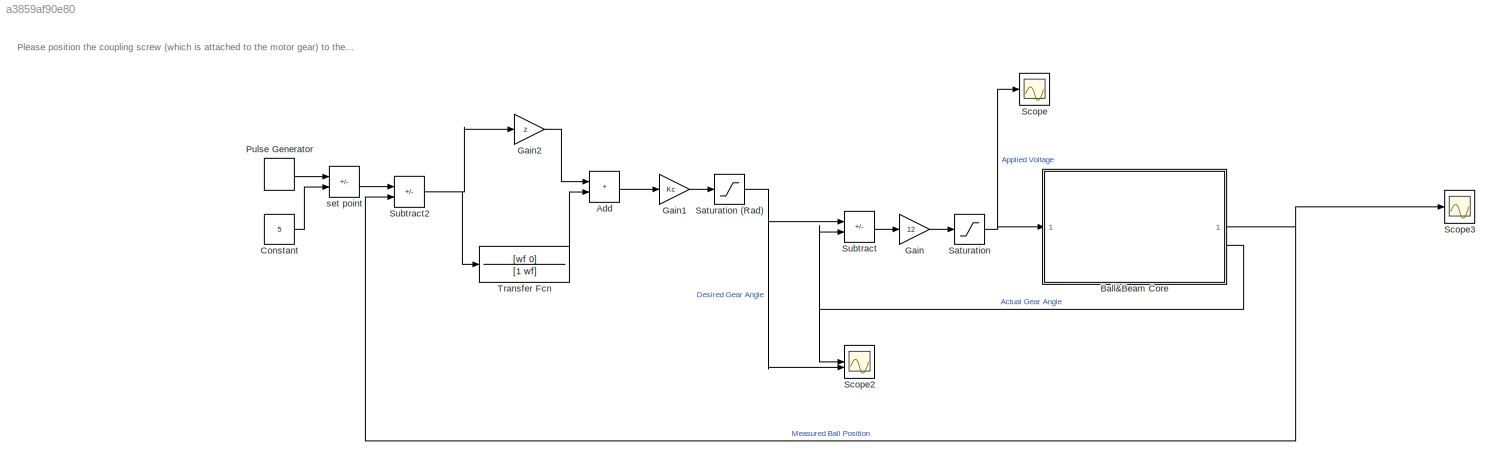
MODEL slx_a3859af90e80
KIND model
CONFIG AbsTol = auto
CONFIG EnableMultiTasking = on
CONFIG FixedStep = 0.002
CONFIG MaxStep = auto
CONFIG MinStep = auto
CONFIG RelTol = 1e-3
CONFIG SampleTimeConstraint = Unconstrained
CONFIG SolverName = FixedStepAuto
CONFIG StartTime = 0.0
CONFIG StopTime = inf
BLOCK [Sum] Add
  IconShape = rectangular
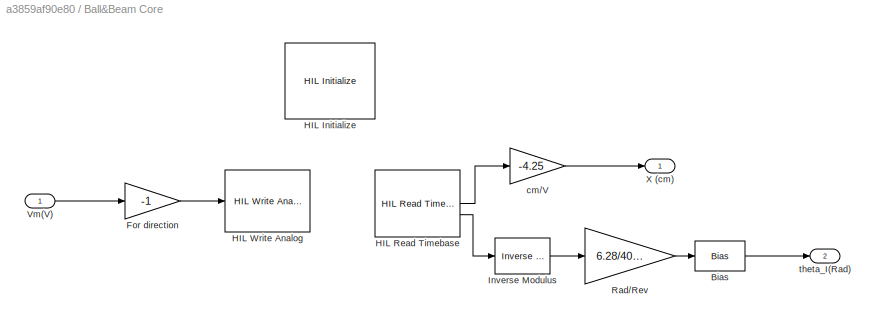
BLOCK [SubSystem] Ball&Beam Core
BLOCK [Bias] Ball&Beam Core/Bias
  Bias = -0.9769
  SaturateOnIntegerOverflow = off
BLOCK [Gain] Ball&Beam Core/For direction
  Gain = -1
BLOCK [Reference] Ball&Beam Core/HIL Initialize  REF=quarc_library/Data Acquisition/Generic/Configuration/HIL Initialize
  AttributesFormatString = %<object_name> (%<board_type>-%<board_number>)
  SourceBlock = quarc_library/Data Acquisition/Generic/Configuration/HIL Initialize
  SourceProductName = QUARC Targets
  SourceType = HIL Initialize
  UserDataPersistent = on
BLOCK [Reference] Ball&Beam Core/HIL Read Timebase  REF=quarc_library/Data Acquisition/Generic/Timebases/HIL Read
Timebase
  AttributesFormatString = (%<object_name>)
  SourceBlock = quarc_library/Data Acquisition/Generic/Timebases/HIL Read\nTimebase
  SourceProductName = QUARC Targets
  SourceType = HIL Read Timebase
  UserDataPersistent = on
BLOCK [Reference] Ball&Beam Core/HIL Write Analog  REF=quarc_library/Data Acquisition/Generic/Immediate I//O/HIL Write Analog
  AttributesFormatString = (%<object_name>)
  SourceBlock = quarc_library/Data Acquisition/Generic/Immediate I//O/HIL Write Analog
  SourceProductName = QUARC Targets
  SourceType = HIL Write Analog
  UserDataPersistent = on
BLOCK [Reference] Ball&Beam Core/Inverse Modulus  REF=quarc_library/Discontinuities/Inverse
Modulus
  SourceBlock = quarc_library/Discontinuities/Inverse\nModulus
  SourceProductName = QUARC Targets
  SourceType = Inverse Modulus
BLOCK [Gain] Ball&Beam Core/Rad//Rev
  Gain = 6.28/4096
BLOCK [Inport] Ball&Beam Core/Vm(V)
BLOCK [Outport] Ball&Beam Core/X (cm)
BLOCK [Gain] Ball&Beam Core/cm//V
  Gain = -4.25
BLOCK [Outport] Ball&Beam Core/theta_I(Rad)
  Port = 2
BLOCK [Constant] Constant
  Value = 5
BLOCK [Gain] Gain
  Gain = 12
BLOCK [Gain] Gain1
  Gain = Kc
BLOCK [Gain] Gain2
  Gain = z
BLOCK [DiscretePulseGenerator] Pulse Generator
  Amplitude = 10
  Period = 40
  PulseType = Time based
  PulseWidth = 50
BLOCK [Saturate] Saturation
  LowerLimit = -9.5
  UpperLimit = 9.5
BLOCK [Saturate] Saturation (Rad)
  LowerLimit = -0.942
  UpperLimit = 0.942
BLOCK [Scope] Scope
  Floating = off
  NumInputPorts = 1
  ScopeSpecificationString = Simulink.scopes.TimeScopeBlockCfg('CurrentConfiguration', extmgr.ConfigurationSet(extmgr.Configuration('Core','General UI',true),extmgr.Configuration('Core','Source UI',true),extmgr.Configuration('Sources','WiredSimulink',true),extmgr.Configuration('Visuals','Time Domain',true,'SerializedDisplays',{struct('MinYLimReal','-10','MaxYLimReal','10','YLabelReal','','MinYLimMag','0','MaxYLimMag','10','Le...<+1276ch>
BLOCK [Scope] Scope2
  Floating = off
  NumInputPorts = 2
  ScopeSpecificationString = Simulink.scopes.TimeScopeBlockCfg('CurrentConfiguration', extmgr.ConfigurationSet(extmgr.Configuration('Core','General UI',true),extmgr.Configuration('Core','Source UI',true),extmgr.Configuration('Sources','WiredSimulink',true,'DataLoggingVariableName','ScopeData2'),extmgr.Configuration('Visuals','Time Domain',true,'SerializedDisplays',{struct('MinYLimReal','-10','MaxYLimReal','10','YLabelReal',''...<+1315ch>
BLOCK [Scope] Scope3
  Floating = off
  NumInputPorts = 2
  ScopeSpecificationString = Simulink.scopes.TimeScopeBlockCfg('CurrentConfiguration', extmgr.ConfigurationSet(extmgr.Configuration('Core','General UI',true),extmgr.Configuration('Core','Source UI',true),extmgr.Configuration('Sources','WiredSimulink',true,'DataLoggingVariableName','ScopeData3'),extmgr.Configuration('Visuals','Time Domain',true,'SerializedDisplays',{struct('MinYLimReal','-10','MaxYLimReal','10','YLabelReal',''...<+1315ch>
BLOCK [Sum] Subtract
  IconShape = rectangular
  Inputs = +-
BLOCK [Sum] Subtract2
  IconShape = rectangular
  Inputs = +-
BLOCK [TransferFcn] Transfer Fcn
  Denominator = [1 wf]
  Numerator = [wf 0]
BLOCK [Sum] set point
  IconShape = rectangular
  Inputs = +-
ANNOTATION (root): Please position the coupling screw (which is attached to the motor gear) to the lowest position before starting this program!
LINE Add:1 -> Gain1:1
LINE Ball&Beam Core/Bias:1 -> Ball&Beam Core/theta_I(Rad):1
LINE Ball&Beam Core/For direction:1 -> Ball&Beam Core/HIL Write Analog:1
LINE Ball&Beam Core/HIL Read Timebase:1 -> Ball&Beam Core/cm//V:1
LINE Ball&Beam Core/HIL Read Timebase:2 -> Ball&Beam Core/Inverse Modulus:1
LINE Ball&Beam Core/Inverse Modulus:1 -> Ball&Beam Core/Rad//Rev:1
LINE Ball&Beam Core/Rad//Rev:1 -> Ball&Beam Core/Bias:1
LINE Ball&Beam Core/Vm(V):1 -> Ball&Beam Core/For direction:1
LINE Ball&Beam Core/cm//V:1 -> Ball&Beam Core/X (cm):1
NET Ball&Beam Core:1 -> Scope3:1, Subtract2:2
NET Ball&Beam Core:2 -> Scope2:1, Subtract:2
LINE Constant:1 -> set point:2
LINE Gain1:1 -> Saturation (Rad):1
LINE Gain2:1 -> Add:1
LINE Gain:1 -> Saturation:1
LINE Pulse Generator:1 -> set point:1
NET Saturation (Rad):1 -> Scope2:2, Subtract:1
NET Saturation:1 -> Ball&Beam Core:1, Scope:1
NET Subtract2:1 -> Gain2:1, Transfer Fcn:1
LINE Subtract:1 -> Gain:1
LINE Transfer Fcn:1 -> Add:2
LINE set point:1 -> Subtract2:1
note: NET lines group one-source signal fan-out (src -> all destinations, sorted); 1:1 wires keep LINE
